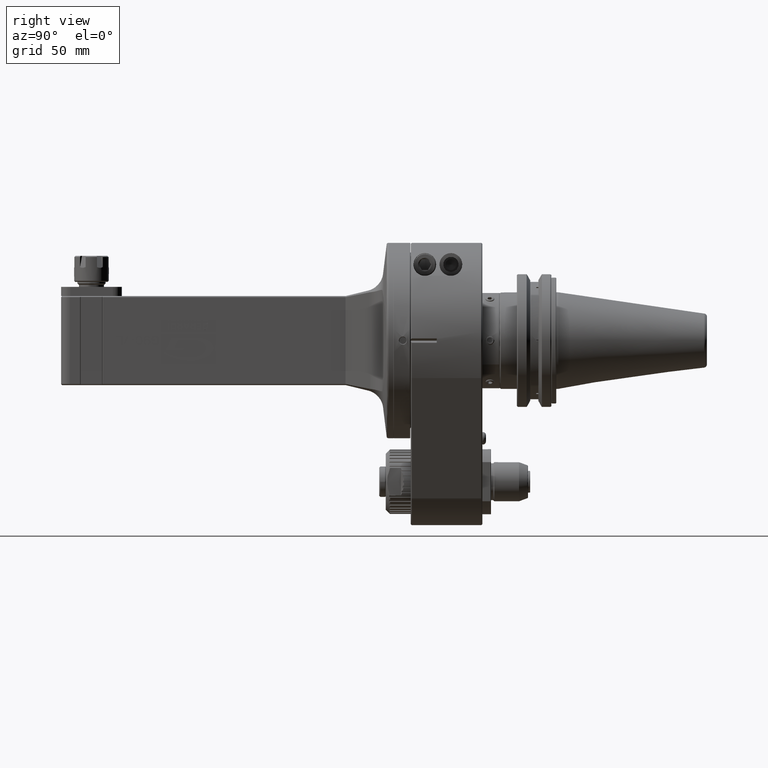
[diagram: clean part render]
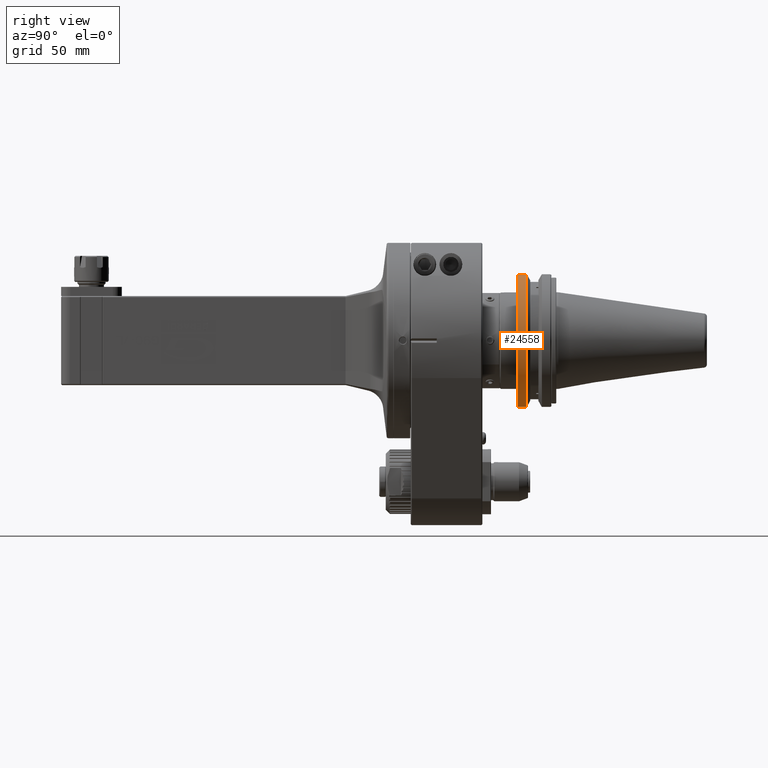
[diagram: same view with one face highlighted and labeled with its STEP entity id]
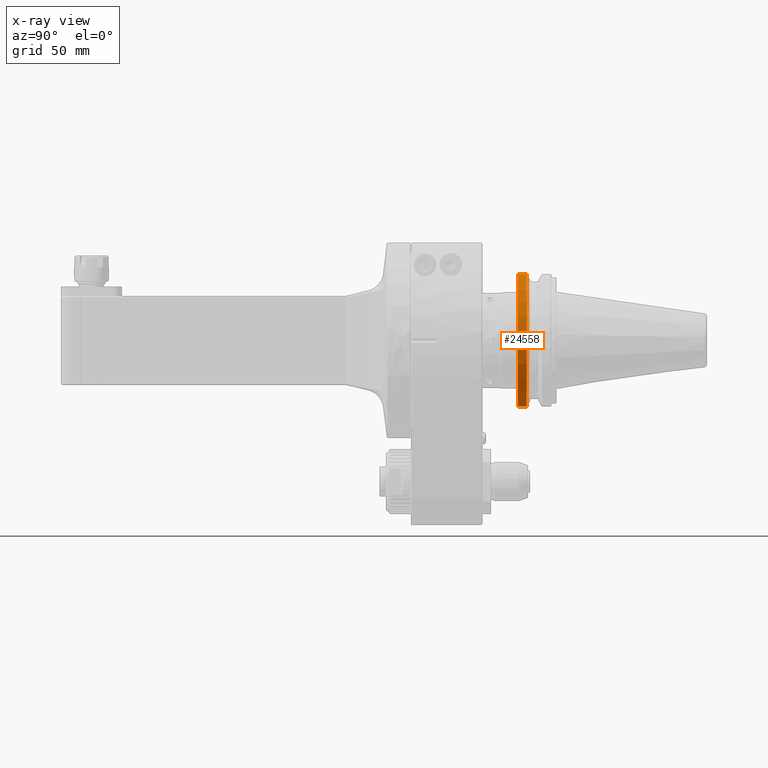
[diagram: x-ray of the same camera — body ghosted, the highlighted face saturated]
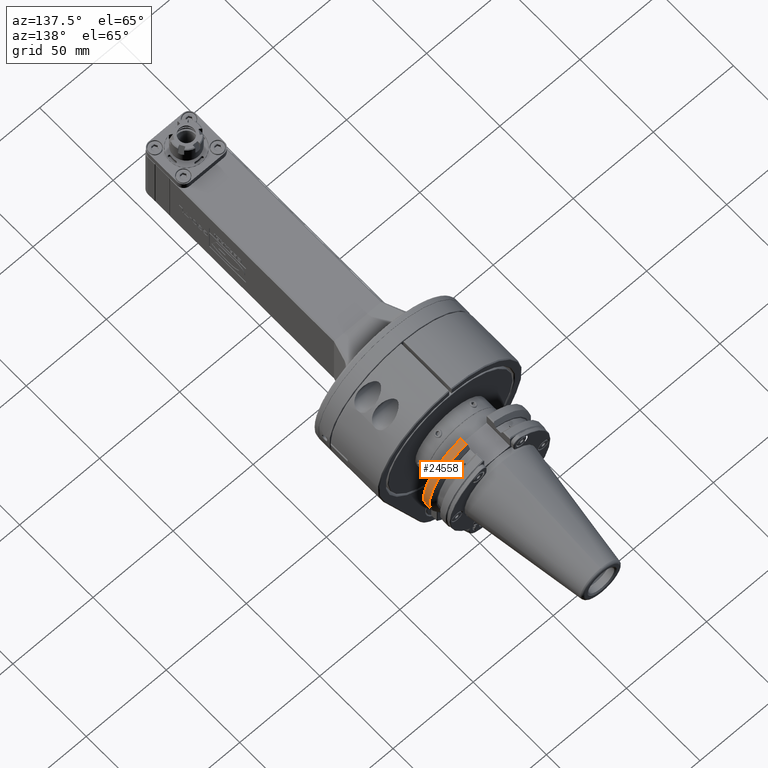
[diagram: same view with one face highlighted and labeled with its STEP entity id]
A machine part, right view. The second image highlights one B-rep face of the part: STEP entity #24558.
The next image is the same camera in x-ray: the body ghosted, the highlighted face saturated — about 0% of this face is hidden behind the body in this view.
A second angle (auxiliary view) of the same face is appended — the face is thin or edge-on in the first view.
In plain terms, the highlighted cylindrical surface (partial cylindrical patch) has radius 31.75 mm, axis along (0, 1, 0).
Its self-contained STEP definition (entity closure, byte-faithful):
#2624=LINE('',#45346,#4753);
#2626=LINE('',#45369,#4755);
#4753=VECTOR('',#33176,10.);
#4755=VECTOR('',#33188,10.);
#5266=CYLINDRICAL_SURFACE('',#26863,31.75);
#6618=FACE_OUTER_BOUND('',#8155,.T.);
#8155=EDGE_LOOP('',(#21390,#21391,#21392,#21393));
#9290=CIRCLE('',#26860,31.75);
#9292=CIRCLE('',#26864,31.75);
#11450=VERTEX_POINT('',#45343);
#11451=VERTEX_POINT('',#45345);
#11453=VERTEX_POINT('',#45352);
#11455=VERTEX_POINT('',#45365);
#14818=EDGE_CURVE('',#11451,#11450,#2624,.T.);
#14821=EDGE_CURVE('',#11450,#11453,#9290,.T.);
#14826=EDGE_CURVE('',#11453,#11455,#2626,.T.);
#14827=EDGE_CURVE('',#11455,#11451,#9292,.T.);
#21390=ORIENTED_EDGE('',*,*,#14826,.T.);
#21391=ORIENTED_EDGE('',*,*,#14827,.T.);
#21392=ORIENTED_EDGE('',*,*,#14818,.T.);
#21393=ORIENTED_EDGE('',*,*,#14821,.T.);
#24558=ADVANCED_FACE('',(#6618),#5266,.T.);
#26860=AXIS2_PLACEMENT_3D('',#45354,#33181,#33182);
#26863=AXIS2_PLACEMENT_3D('',#45370,#33189,#33190);
#26864=AXIS2_PLACEMENT_3D('',#45371,#33191,#33192);
#33176=DIRECTION('',(0.,1.,0.));
#33181=DIRECTION('center_axis',(0.,-1.,0.));
#33182=DIRECTION('ref_axis',(0.273599999999997,0.,-0.961843563163991));
#33188=DIRECTION('',(0.,-1.,0.));
#33189=DIRECTION('center_axis',(0.,1.,0.));
#33190=DIRECTION('ref_axis',(0.,0.,1.));
#33191=DIRECTION('center_axis',(0.,1.,0.));
#33192=DIRECTION('ref_axis',(0.273599999999997,0.,0.961843563163991));
#45343=CARTESIAN_POINT('',(8.6868,200.371,-30.53853313046));
#45345=CARTESIAN_POINT('',(8.686799999154,196.400034829491,-30.5385331302447));
#45346=CARTESIAN_POINT('',(8.68679999999587,195.105,-30.5385331304579));
#45352=CARTESIAN_POINT('',(8.6868,200.371,30.53853313046));
#45354=CARTESIAN_POINT('Origin',(0.,200.371,-3.543179628565E-14));
#45365=CARTESIAN_POINT('',(8.68679999910202,196.40003482943,30.5385331302314));
#45369=CARTESIAN_POINT('',(8.6867999999958,195.105,30.5385331304578));
#45370=CARTESIAN_POINT('Origin',(0.,195.105,-3.369604168784E-14));
#45371=CARTESIAN_POINT('Origin',(0.,196.4000348305,-1.327549705338E-13));